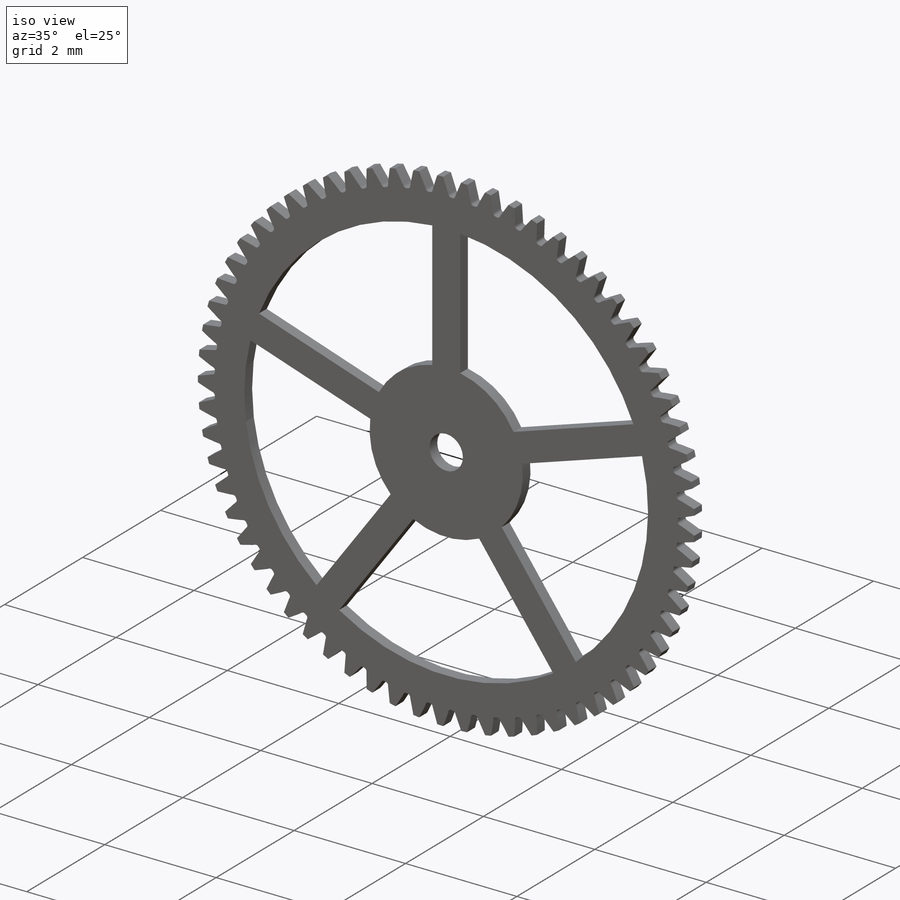
[diagram: iso view]
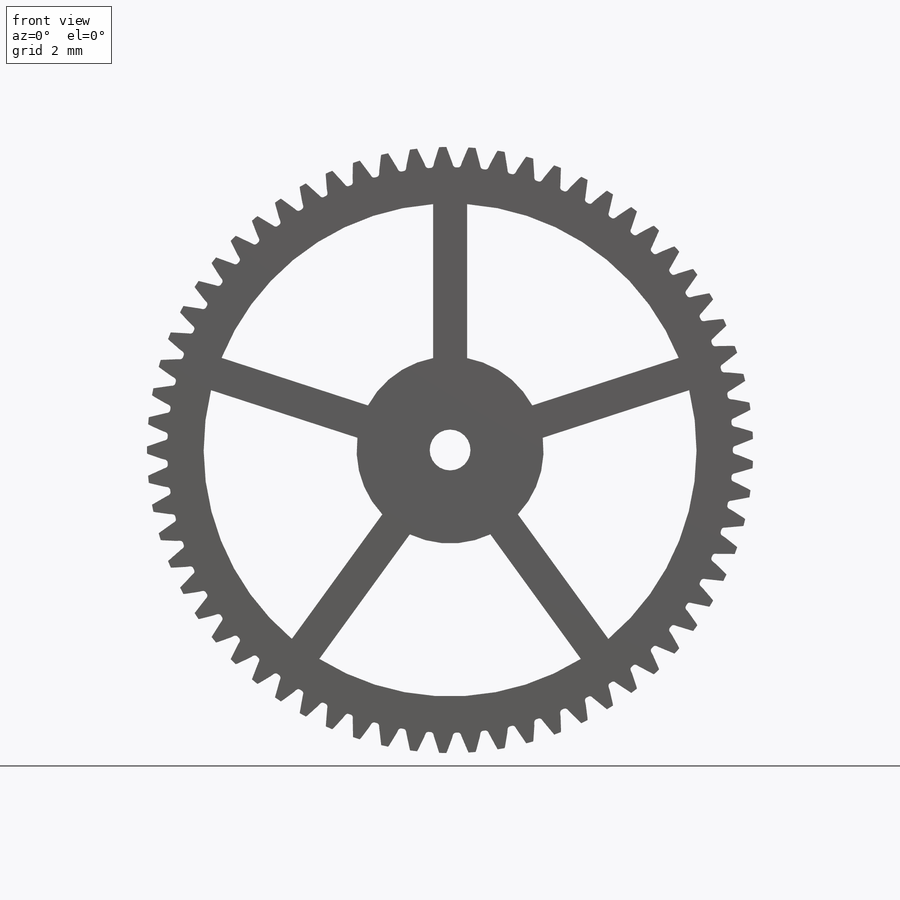
[diagram: front view]
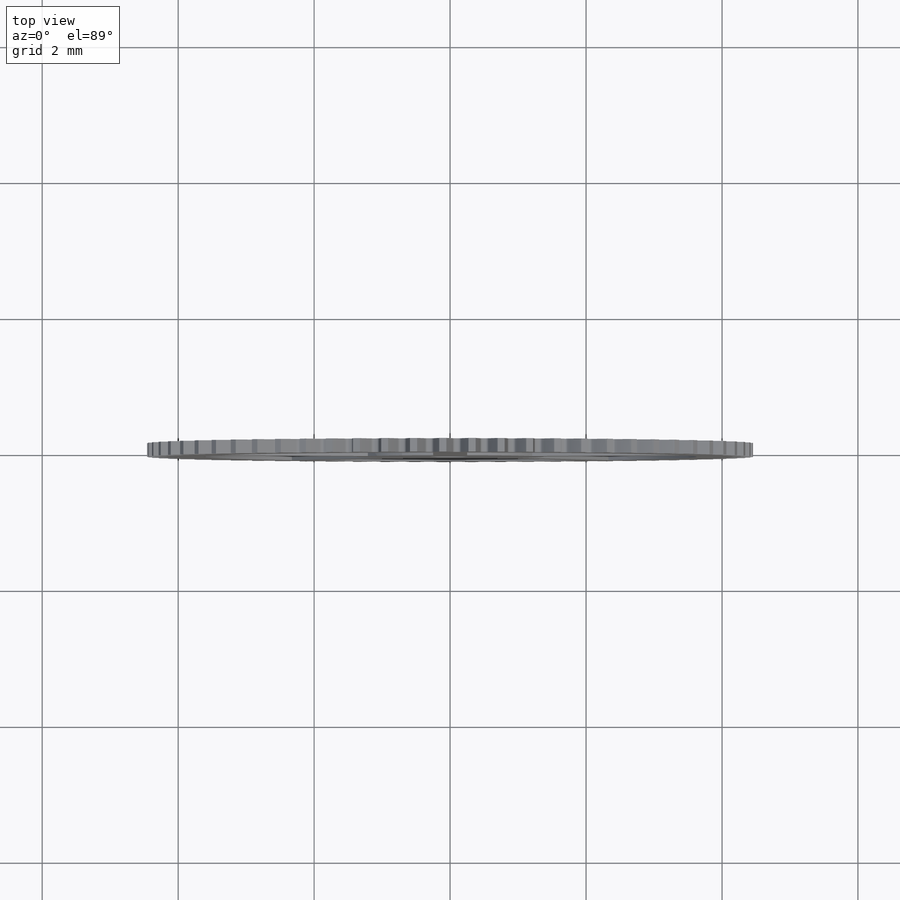
[diagram: top view]
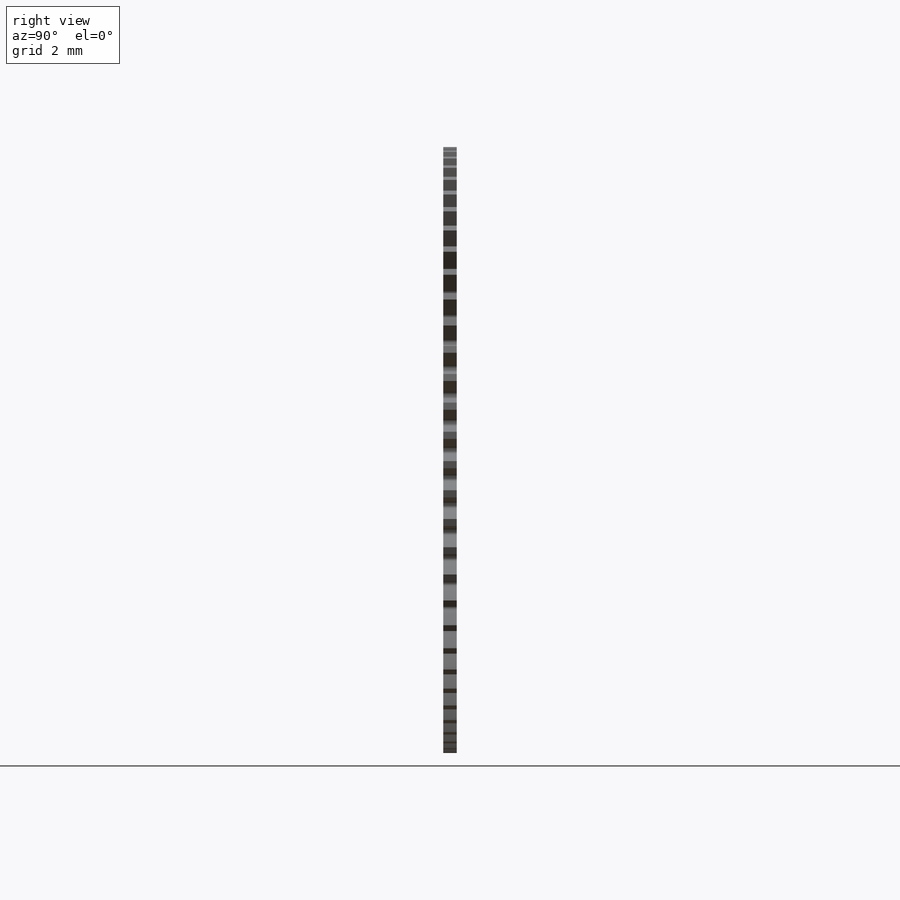
[diagram: right view]
SOLIDWORKS PART (.sldprt)
format: sldprt  version: not decoded by parser v0  size: 1,035,776 bytes
history: native  units: mm
features: sketch x4, plane x3, cut_extrude x2, material x1, revolve x1, pattern_circular x1 (+8 scaffold rows collapsed)
feature tree (20):
  scaffold x8  (default folders/planes/origin — collapsed)
  material  "Material <sin especificar>"
  plane  "Alzado"
  plane  "Planta"
  plane  "Vista lateral"
  sketch  "SketchRevolveEngranaje Arriba(8.9)"
  revolve  "Engranaje Arriba(8.9)"  Angle=360deg
  sketch  "SketchToothEngranaje Arriba(8.9)"
  cut_extrude  "ToothExtrudeCutEngranaje Arriba(8.9)"  Depth=0.1mm
  pattern_circular  "PatternEngranaje Arriba(8.9)"  Count=65 Angle=5.538462deg
  sketch  "AuxiliarySketchEngranaje Arriba(8.9)"  dims[PitchDiameter=8.65mm BaseDiameter=~8.128341mm FormDiameter=~8.405163mm MajorDiameter=~8.916154mm MinorDiameter=~8.317308mm]
  sketch  "Croquis1"  dims[c1.D1=0.6mm c1.D2=7.25mm c1.D3=2.75mm c1.D4=3.625mm c2.D4=72.0deg c2.D5=~3.44758mm c3.D5=72.0deg c3.D6=3.625mm c4.D6=72.0deg c4.D7=3.625mm c5.D7=72.0deg c5.D8=3.625mm c6.D8=72.0deg c7.D8=0.5mm c7.D9=0.25mm c7.D10=0.25mm c7.D11=0.25mm c7.D12=0.25mm c7.D13=0.25mm c7.D14=0.5mm c7.D15=0.25mm c7.D16=0.5mm c7.D17=0.25mm c8.D8=0.25mm c8.D9=0.25mm]
  cut_extrude  "Cortar-Extruir1"  [1 undecoded]
decode coverage: 5 of 8 modeling features carry decoded parameters
note: ~ marks probable driven/reference dimensions
note: 1 parameter value undecoded
note: suppression state not decoded; provenance and decode notes live in map.json
